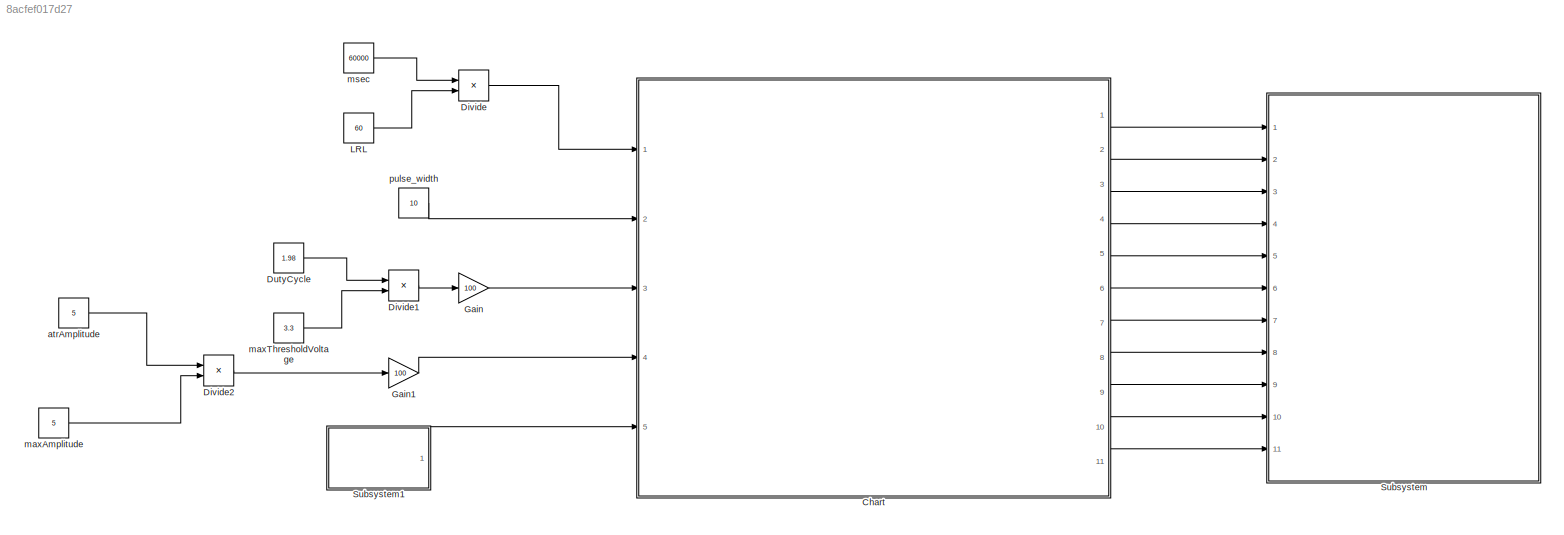
MODEL slx_8acfef017d27
KIND model
CONFIG AbsTol = auto
CONFIG EnableMultiTasking = on
CONFIG FixedStep = 1e-3
CONFIG MaxStep = auto
CONFIG MinStep = auto
CONFIG RelTol = 1e-3
CONFIG SampleTimeConstraint = Unconstrained
CONFIG Solver = FixedStepAuto
CONFIG SolverName = FixedStepAuto
CONFIG StartTime = 0.0
CONFIG StopTime = 10.0
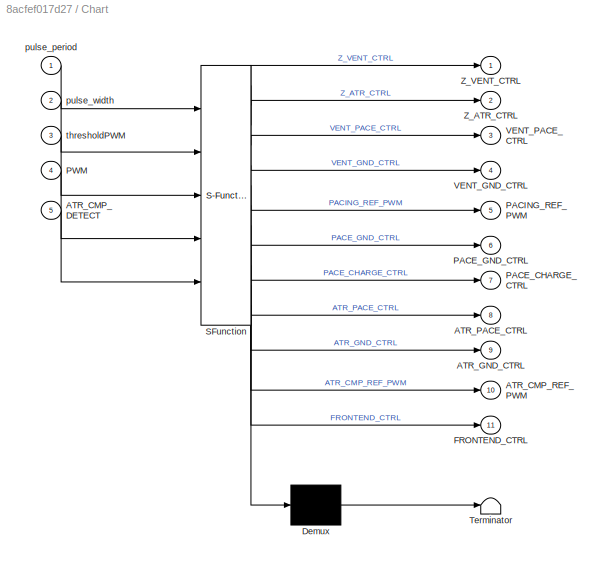
BLOCK [SubSystem] Chart
  ErrorFcn = Stateflow.Translate.translate
  PermitHierarchicalResolution = ExplicitOnly
  Ports = [5, 11]
  RequestExecContextInheritance = off
  SFBlockType = Chart
  TreatAsAtomicUnit = on
BLOCK [Demux] Chart/ Demux 
  Outputs = 1
  Ports = [1, 1]
BLOCK [S-Function] Chart/ SFunction 
  EnableBusSupport = on
  FunctionName = sf_sfun
  PortCounts = [5 12]
  Ports = [5, 12]
  SFcnIsStateOwnerBlock = off
  SFunctionDeploymentMode = off
  Tag = Stateflow S-Function 3
BLOCK [Terminator] Chart/ Terminator 
BLOCK [Inport] Chart/ATR_CMP_DETECT
  Port = 5
BLOCK [Outport] Chart/ATR_CMP_REF_PWM
  Port = 10
BLOCK [Outport] Chart/ATR_GND_CTRL
  Port = 9
BLOCK [Outport] Chart/ATR_PACE_CTRL
  Port = 8
BLOCK [Outport] Chart/FRONTEND_CTRL
  Port = 11
BLOCK [Outport] Chart/PACE_CHARGE_CTRL
  Port = 7
BLOCK [Outport] Chart/PACE_GND_CTRL
  Port = 6
BLOCK [Outport] Chart/PACING_REF_PWM
  Port = 5
BLOCK [Inport] Chart/PWM
  Port = 4
BLOCK [Outport] Chart/VENT_GND_CTRL
  Port = 4
BLOCK [Outport] Chart/VENT_PACE_CTRL
  Port = 3
BLOCK [Outport] Chart/Z_ATR_CTRL
  Port = 2
BLOCK [Outport] Chart/Z_VENT_CTRL
BLOCK [Inport] Chart/pulse_period
BLOCK [Inport] Chart/pulse_width
  Port = 2
BLOCK [Inport] Chart/thresholdPWM
  Port = 3
BLOCK [Product] Divide
  Inputs = */
  Ports = [2, 1]
BLOCK [Product] Divide1
  Inputs = */
  Ports = [2, 1]
BLOCK [Product] Divide2
  Inputs = */
  Ports = [2, 1]
BLOCK [Constant] DutyCycle
  Value = 1.98
BLOCK [Gain] Gain
  Gain = 100
BLOCK [Gain] Gain1
  Gain = 100
BLOCK [Constant] LRL
  Value = 60
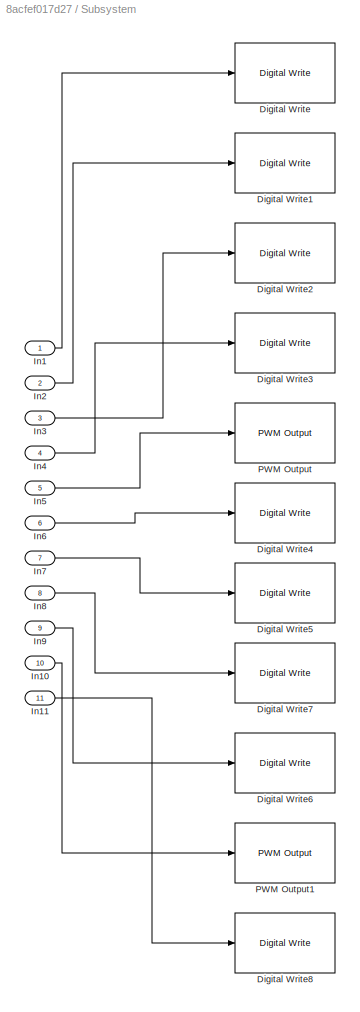
BLOCK [SubSystem] Subsystem
  Ports = [11]
  RequestExecContextInheritance = off
BLOCK [Reference] Subsystem/Digital Write  REF=frdmk64flib/Digital Write
  Ports = [1]
  SourceBlock = frdmk64flib/Digital Write
  SourceProductBaseCode = EC_FRDM_K64F
  SourceType = freedomk64f.DigitalWrite
BLOCK [Reference] Subsystem/Digital Write1  REF=frdmk64flib/Digital Write
  Ports = [1]
  SourceBlock = frdmk64flib/Digital Write
  SourceProductBaseCode = EC_FRDM_K64F
  SourceType = freedomk64f.DigitalWrite
BLOCK [Reference] Subsystem/Digital Write2  REF=frdmk64flib/Digital Write
  Ports = [1]
  SourceBlock = frdmk64flib/Digital Write
  SourceProductBaseCode = EC_FRDM_K64F
  SourceType = freedomk64f.DigitalWrite
BLOCK [Reference] Subsystem/Digital Write3  REF=frdmk64flib/Digital Write
  Ports = [1]
  SourceBlock = frdmk64flib/Digital Write
  SourceProductBaseCode = EC_FRDM_K64F
  SourceType = freedomk64f.DigitalWrite
BLOCK [Reference] Subsystem/Digital Write4  REF=frdmk64flib/Digital Write
  Ports = [1]
  SourceBlock = frdmk64flib/Digital Write
  SourceProductBaseCode = EC_FRDM_K64F
  SourceType = freedomk64f.DigitalWrite
BLOCK [Reference] Subsystem/Digital Write5  REF=frdmk64flib/Digital Write
  Ports = [1]
  SourceBlock = frdmk64flib/Digital Write
  SourceProductBaseCode = EC_FRDM_K64F
  SourceType = freedomk64f.DigitalWrite
BLOCK [Reference] Subsystem/Digital Write6  REF=frdmk64flib/Digital Write
  Ports = [1]
  SourceBlock = frdmk64flib/Digital Write
  SourceProductBaseCode = EC_FRDM_K64F
  SourceType = freedomk64f.DigitalWrite
BLOCK [Reference] Subsystem/Digital Write7  REF=frdmk64flib/Digital Write
  Ports = [1]
  SourceBlock = frdmk64flib/Digital Write
  SourceProductBaseCode = EC_FRDM_K64F
  SourceType = freedomk64f.DigitalWrite
BLOCK [Reference] Subsystem/Digital Write8  REF=frdmk64flib/Digital Write
  Ports = [1]
  SourceBlock = frdmk64flib/Digital Write
  SourceProductBaseCode = EC_FRDM_K64F
  SourceType = freedomk64f.DigitalWrite
BLOCK [Inport] Subsystem/In1
BLOCK [Inport] Subsystem/In10
  Port = 10
BLOCK [Inport] Subsystem/In11
  Port = 11
BLOCK [Inport] Subsystem/In2
  Port = 2
BLOCK [Inport] Subsystem/In3
  Port = 3
BLOCK [Inport] Subsystem/In4
  Port = 4
BLOCK [Inport] Subsystem/In5
  Port = 5
BLOCK [Inport] Subsystem/In6
  Port = 6
BLOCK [Inport] Subsystem/In7
  Port = 7
BLOCK [Inport] Subsystem/In8
  Port = 8
BLOCK [Inport] Subsystem/In9
  Port = 9
BLOCK [Reference] Subsystem/PWM Output  REF=frdmk64flib/PWM Output
  Ports = [1]
  SourceBlock = frdmk64flib/PWM Output
  SourceProductBaseCode = EC_FRDM_K64F
  SourceType = freedomk64f.PWMOutput
BLOCK [Reference] Subsystem/PWM Output1  REF=frdmk64flib/PWM Output
  Ports = [1]
  SourceBlock = frdmk64flib/PWM Output
  SourceProductBaseCode = EC_FRDM_K64F
  SourceType = freedomk64f.PWMOutput
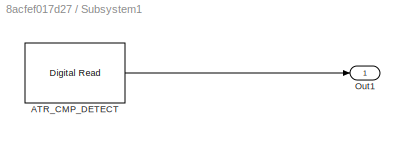
BLOCK [SubSystem] Subsystem1
  Ports = [0, 1]
  RequestExecContextInheritance = off
BLOCK [Reference] Subsystem1/ATR_CMP_DETECT  REF=frdmk64flib/Digital Read
  Ports = [0, 1]
  SourceBlock = frdmk64flib/Digital Read
  SourceProductBaseCode = EC_FRDM_K64F
  SourceType = freedomk64f.DigitalRead
BLOCK [Outport] Subsystem1/Out1
BLOCK [Constant] atrAmplitude
  Value = 5
BLOCK [Constant] maxAmplitude
  Value = 5
BLOCK [Constant] maxThresholdVoltage
  Value = 3.3
BLOCK [Constant] msec
  Value = 60000
BLOCK [Constant] pulse_width
  Value = 10
LINE Chart:1 -> Subsystem:1
LINE Chart:10 -> Subsystem:10
LINE Chart:11 -> Subsystem:11
LINE Chart:2 -> Subsystem:2
LINE Chart:3 -> Subsystem:3
LINE Chart:4 -> Subsystem:4
LINE Chart:5 -> Subsystem:5
LINE Chart:6 -> Subsystem:6
LINE Chart:7 -> Subsystem:7
LINE Chart:8 -> Subsystem:8
LINE Chart:9 -> Subsystem:9
LINE Divide1:1 -> Gain:1
LINE Divide2:1 -> Gain1:1
LINE Divide:1 -> Chart:1
LINE DutyCycle:1 -> Divide1:1
LINE Gain1:1 -> Chart:4
LINE Gain:1 -> Chart:3
LINE LRL:1 -> Divide:2
LINE Subsystem/In10:1 -> Subsystem/PWM Output1:1
LINE Subsystem/In11:1 -> Subsystem/Digital Write8:1
LINE Subsystem/In1:1 -> Subsystem/Digital Write:1
LINE Subsystem/In2:1 -> Subsystem/Digital Write1:1
LINE Subsystem/In3:1 -> Subsystem/Digital Write2:1
LINE Subsystem/In4:1 -> Subsystem/Digital Write3:1
LINE Subsystem/In5:1 -> Subsystem/PWM Output:1
LINE Subsystem/In6:1 -> Subsystem/Digital Write4:1
LINE Subsystem/In7:1 -> Subsystem/Digital Write5:1
LINE Subsystem/In8:1 -> Subsystem/Digital Write7:1
LINE Subsystem/In9:1 -> Subsystem/Digital Write6:1
LINE Subsystem1/ATR_CMP_DETECT:1 -> Subsystem1/Out1:1
LINE Subsystem1:1 -> Chart:5
LINE atrAmplitude:1 -> Divide2:1
LINE maxAmplitude:1 -> Divide2:2
LINE maxThresholdVoltage:1 -> Divide1:2
LINE msec:1 -> Divide:1
LINE pulse_width:1 -> Chart:2
CHART Chart states=3 transitions=5
  STATE_LABEL 'Idle\nentry:\n%Set threshold\nATR_CMP_REF_PWM = thresholdPWM;\nFRONTEND_CTRL = 1;\n'
  STATE_LABEL 'AVpacing\nentry:\nPACE_CHARGE_CTRL = 0;\nPACE_GND_CTRL = 1;\nATR_PACE_CTRL = 1;\nATR_GND_CTRL = 0;\nZ_ATR_CTRL = 0;\nZ_VENT_CTRL = 0;\nVENT_GND_CTRL = 0;\nVENT_PACE_CTRL = 0;\nPACING_REF_PWM = PWM;\n'
  STATE_LABEL 'ChargeDischarge\nentry:\n%C22\nATR_PACE_CTRL = 0;\nVENT_PACE_CTRL = 0;\nPACING_REF_PWM = PWM;\nPACE_CHARGE_CTRL = 1;\n%C21\nPACE_GND_CTRL = 1;\nVENT_PACE_CTRL = 0;\nZ_ATR_CTRL = 0;\nZ_VENT_CTRL = 0;\nATR_GND_CTRL = 1;\nVENT_GND_CTRL = 0;\n'
CHART  states=0 transitions=0
